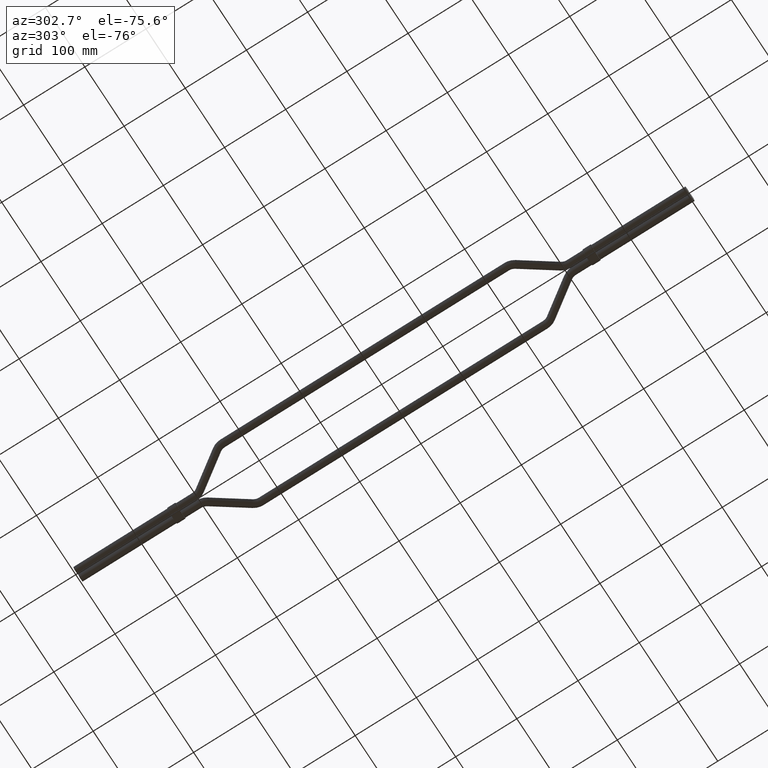
[diagram: clean part render]
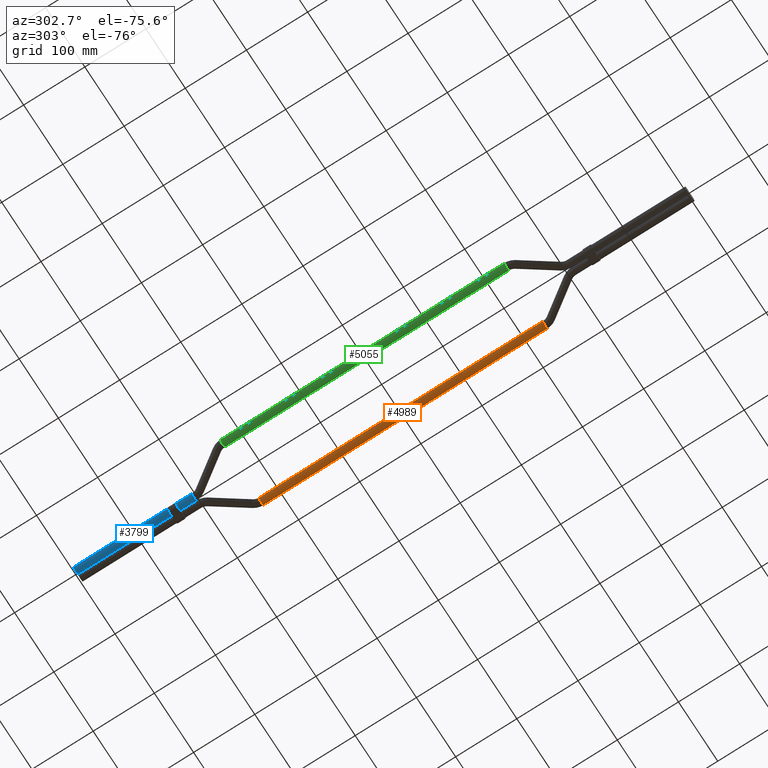
[diagram: same view with three faces highlighted in distinct colors, each labeled with its STEP entity id]
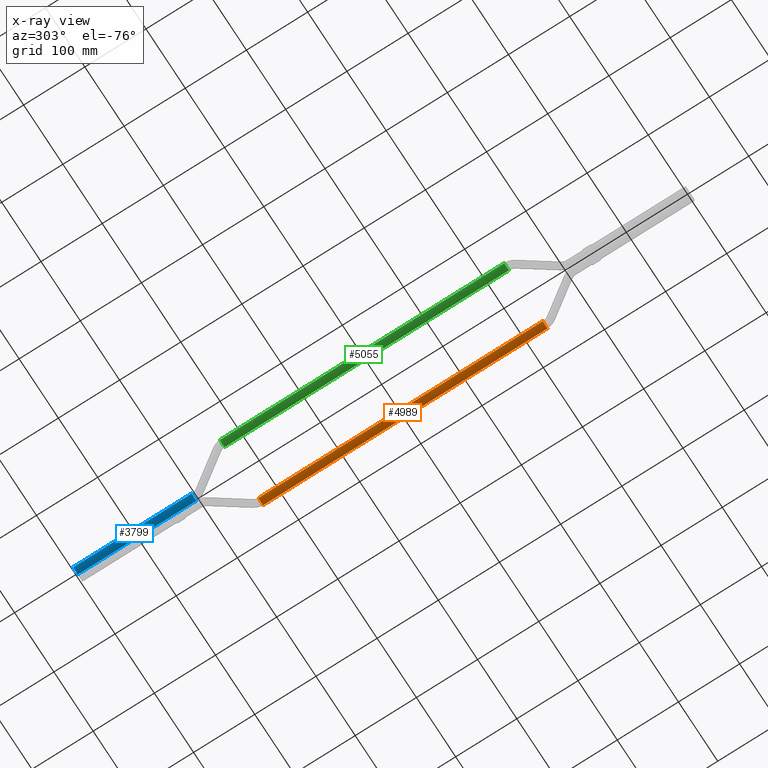
[diagram: x-ray of the same camera — body ghosted, the three highlighted faces saturated]
A machine part, auxiliary view with three faces highlighted in distinct colors.
The next image is the same camera in x-ray (body ghosted, the three faces saturated) — at least one of them is partly hidden behind the body in this view.
Their STEP definitions:

[orange] entity #4989 — the highlighted cylindrical surface (edge-blend (fillet) strip) has radius 6 mm, axis along (-0, 1, 0).
#60 = VERTEX_POINT ( 'NONE', #5486 ) ;
#234 = DIRECTION ( 'NONE',  ( -1.000000000000000000, 0.0000000000000000000, 0.0000000000000000000 ) ) ;
#272 = EDGE_CURVE ( 'NONE', #60, #1534, #6902, .T. ) ;
#735 = AXIS2_PLACEMENT_3D ( 'NONE', #757, #5087, #1363 ) ;
#757 = CARTESIAN_POINT ( 'NONE',  ( 55.00000000000007800, 267.7163400650701400, 0.0000000000000000000 ) ) ;
#805 = CIRCLE ( 'NONE', #735, 6.000000000000002700 ) ;
#965 = LINE ( 'NONE', #6100, #2438 ) ;
#1199 = DIRECTION ( 'NONE',  ( -1.493625058656953700E-017, 1.000000000000000000, 0.0000000000000000000 ) ) ;
#1308 = ORIENTED_EDGE ( 'NONE', *, *, #272, .T. ) ;
#1363 = DIRECTION ( 'NONE',  ( 0.0000000000000000000, 0.0000000000000000000, 1.000000000000000000 ) ) ;
#1534 = VERTEX_POINT ( 'NONE', #7263 ) ;
#1738 = CARTESIAN_POINT ( 'NONE',  ( 55.00000000000007100, 732.2836599349298000, 0.0000000000000000000 ) ) ;
#1996 = CIRCLE ( 'NONE', #3702, 6.000000000000002700 ) ;
#2363 = DIRECTION ( 'NONE',  ( 0.0000000000000000000, 0.0000000000000000000, 1.000000000000000000 ) ) ;
#2438 = VECTOR ( 'NONE', #1199, 1000.000000000000000 ) ;
#2459 = EDGE_CURVE ( 'NONE', #5306, #1534, #1996, .T. ) ;
#3272 = ORIENTED_EDGE ( 'NONE', *, *, #6672, .F. ) ;
#3618 = ORIENTED_EDGE ( 'NONE', *, *, #3756, .T. ) ;
#3702 = AXIS2_PLACEMENT_3D ( 'NONE', #1738, #6016, #2363 ) ;
#3741 = EDGE_LOOP ( 'NONE', ( #3272, #3618, #1308, #5341 ) ) ;
#3756 = EDGE_CURVE ( 'NONE', #6355, #60, #805, .T. ) ;
#3909 = CYLINDRICAL_SURFACE ( 'NONE', #7611, 6.000000000000005300 ) ;
#4112 = FACE_OUTER_BOUND ( 'NONE', #3741, .T. ) ;
#4575 = CARTESIAN_POINT ( 'NONE',  ( 55.00000000000007800, 267.7163400650701400, 0.0000000000000000000 ) ) ;
#4989 = ADVANCED_FACE ( 'NONE', ( #4112 ), #3909, .T. ) ;
#5087 = DIRECTION ( 'NONE',  ( -3.885780586188047900E-016, 1.000000000000000000, 0.0000000000000000000 ) ) ;
#5231 = DIRECTION ( 'NONE',  ( -1.493625058656953700E-017, 1.000000000000000000, 0.0000000000000000000 ) ) ;
#5306 = VERTEX_POINT ( 'NONE', #6461 ) ;
#5335 = CARTESIAN_POINT ( 'NONE',  ( 49.00000000000007100, 267.7163400650701400, 0.0000000000000000000 ) ) ;
#5341 = ORIENTED_EDGE ( 'NONE', *, *, #2459, .F. ) ;
#5441 = VECTOR ( 'NONE', #5231, 1000.000000000000000 ) ;
#5486 = CARTESIAN_POINT ( 'NONE',  ( 49.00000000000007100, 267.7163400650701400, 0.0000000000000000000 ) ) ;
#5781 = DIRECTION ( 'NONE',  ( -1.493625058656953700E-017, 1.000000000000000000, 0.0000000000000000000 ) ) ;
#5932 = CARTESIAN_POINT ( 'NONE',  ( 61.00000000000008500, 267.7163400650701400, 7.347880794884118800E-016 ) ) ;
#6016 = DIRECTION ( 'NONE',  ( -3.885780586188047900E-016, 1.000000000000000000, 0.0000000000000000000 ) ) ;
#6100 = CARTESIAN_POINT ( 'NONE',  ( 61.00000000000008500, 267.7163400650701400, 7.347880794884121700E-016 ) ) ;
#6355 = VERTEX_POINT ( 'NONE', #5932 ) ;
#6461 = CARTESIAN_POINT ( 'NONE',  ( 61.00000000000007800, 732.2836599349298000, 7.347880794884118800E-016 ) ) ;
#6672 = EDGE_CURVE ( 'NONE', #6355, #5306, #965, .T. ) ;
#6902 = LINE ( 'NONE', #5335, #5441 ) ;
#7263 = CARTESIAN_POINT ( 'NONE',  ( 49.00000000000006400, 732.2836599349298000, 0.0000000000000000000 ) ) ;
#7611 = AXIS2_PLACEMENT_3D ( 'NONE', #4575, #5781, #234 ) ;

[blue] entity #3799 — the highlighted cylindrical surface (edge-blend (fillet) strip) has radius 6 mm, axis along (-0, 1, 0).
#698 = ORIENTED_EDGE ( 'NONE', *, *, #4877, .T. ) ;
#727 = LINE ( 'NONE', #2368, #7100 ) ;
#1019 = EDGE_LOOP ( 'NONE', ( #1585, #2015, #698, #3369 ) ) ;
#1585 = ORIENTED_EDGE ( 'NONE', *, *, #3116, .F. ) ;
#1635 = DIRECTION ( 'NONE',  ( -2.997602166487923400E-015, 1.000000000000000000, 0.0000000000000000000 ) ) ;
#2015 = ORIENTED_EDGE ( 'NONE', *, *, #4644, .T. ) ;
#2368 = CARTESIAN_POINT ( 'NONE',  ( 6.000000000000111900, 806.3059757775798700, 7.347880794884120700E-016 ) ) ;
#2641 = DIRECTION ( 'NONE',  ( -3.582399576736165800E-017, 1.000000000000000000, 0.0000000000000000000 ) ) ;
#2864 = VECTOR ( 'NONE', #5051, 1000.000000000000000 ) ;
#2906 = CARTESIAN_POINT ( 'NONE',  ( 1.110223024625156500E-013, 806.3059757775798700, 0.0000000000000000000 ) ) ;
#3116 = EDGE_CURVE ( 'NONE', #3388, #4992, #727, .T. ) ;
#3229 = AXIS2_PLACEMENT_3D ( 'NONE', #7298, #2641, #3248 ) ;
#3248 = DIRECTION ( 'NONE',  ( -1.000000000000000000, 0.0000000000000000000, 0.0000000000000000000 ) ) ;
#3369 = ORIENTED_EDGE ( 'NONE', *, *, #6941, .F. ) ;
#3388 = VERTEX_POINT ( 'NONE', #5374 ) ;
#3515 = DIRECTION ( 'NONE',  ( 0.0000000000000000000, 0.0000000000000000000, 1.000000000000000000 ) ) ;
#3799 = ADVANCED_FACE ( 'NONE', ( #3912 ), #5352, .T. ) ;
#3856 = CARTESIAN_POINT ( 'NONE',  ( -5.999999999999889900, 806.3059757775798700, 0.0000000000000000000 ) ) ;
#3912 = FACE_OUTER_BOUND ( 'NONE', #1019, .T. ) ;
#4256 = CARTESIAN_POINT ( 'NONE',  ( -5.999999999999890800, 806.3059757775798700, 0.0000000000000000000 ) ) ;
#4644 = EDGE_CURVE ( 'NONE', #3388, #6492, #6909, .T. ) ;
#4829 = DIRECTION ( 'NONE',  ( -3.582399576736165800E-017, 1.000000000000000000, 0.0000000000000000000 ) ) ;
#4877 = EDGE_CURVE ( 'NONE', #6492, #5917, #6244, .T. ) ;
#4992 = VERTEX_POINT ( 'NONE', #5750 ) ;
#5051 = DIRECTION ( 'NONE',  ( -3.582399576736165800E-017, 1.000000000000000000, 0.0000000000000000000 ) ) ;
#5325 = CARTESIAN_POINT ( 'NONE',  ( 1.040834085586084300E-013, 1000.000000000000000, 0.0000000000000000000 ) ) ;
#5352 = CYLINDRICAL_SURFACE ( 'NONE', #3229, 6.000000000000000900 ) ;
#5374 = CARTESIAN_POINT ( 'NONE',  ( 6.000000000000111900, 806.3059757775798700, 7.347880794884124700E-016 ) ) ;
#5681 = CARTESIAN_POINT ( 'NONE',  ( -5.999999999999897000, 1000.000000000000000, 0.0000000000000000000 ) ) ;
#5750 = CARTESIAN_POINT ( 'NONE',  ( 6.000000000000105700, 1000.000000000000000, 7.347880794884122700E-016 ) ) ;
#5917 = VERTEX_POINT ( 'NONE', #5681 ) ;
#5920 = DIRECTION ( 'NONE',  ( 0.0000000000000000000, 0.0000000000000000000, 1.000000000000000000 ) ) ;
#5954 = CIRCLE ( 'NONE', #6963, 6.000000000000000900 ) ;
#6244 = LINE ( 'NONE', #3856, #2864 ) ;
#6492 = VERTEX_POINT ( 'NONE', #4256 ) ;
#6909 = CIRCLE ( 'NONE', #7010, 6.000000000000000900 ) ;
#6941 = EDGE_CURVE ( 'NONE', #4992, #5917, #5954, .T. ) ;
#6963 = AXIS2_PLACEMENT_3D ( 'NONE', #5325, #1635, #5920 ) ;
#7007 = DIRECTION ( 'NONE',  ( -2.997602166487923400E-015, 1.000000000000000000, 0.0000000000000000000 ) ) ;
#7010 = AXIS2_PLACEMENT_3D ( 'NONE', #2906, #7007, #3515 ) ;
#7100 = VECTOR ( 'NONE', #4829, 1000.000000000000000 ) ;
#7298 = CARTESIAN_POINT ( 'NONE',  ( 1.110223024625156500E-013, 806.3059757775798700, 0.0000000000000000000 ) ) ;

[green] entity #5055 — the highlighted cylindrical surface (edge-blend (fillet) strip) has radius 6 mm, axis along (-0, 1, 0).
#70 = ORIENTED_EDGE ( 'NONE', *, *, #2323, .F. ) ;
#140 = DIRECTION ( 'NONE',  ( 0.0000000000000000000, 0.0000000000000000000, 1.000000000000000000 ) ) ;
#152 = DIRECTION ( 'NONE',  ( -7.771561172376097800E-016, 1.000000000000000000, 0.0000000000000000000 ) ) ;
#157 = CARTESIAN_POINT ( 'NONE',  ( -42.99999999999990100, 267.7163400674862100, 0.0000000000000000000 ) ) ;
#173 = CARTESIAN_POINT ( 'NONE',  ( -42.99999999999998600, 732.2836599325137300, 0.0000000000000000000 ) ) ;
#770 = VECTOR ( 'NONE', #1220, 1000.000000000000000 ) ;
#1009 = AXIS2_PLACEMENT_3D ( 'NONE', #2273, #2260, #2237 ) ;
#1022 = CARTESIAN_POINT ( 'NONE',  ( -48.99999999999990100, 267.7163400674862100, 0.0000000000000000000 ) ) ;
#1040 = EDGE_CURVE ( 'NONE', #7381, #1831, #1161, .T. ) ;
#1161 = LINE ( 'NONE', #1245, #770 ) ;
#1220 = DIRECTION ( 'NONE',  ( -1.792350070406987500E-016, 1.000000000000000000, 0.0000000000000000000 ) ) ;
#1245 = CARTESIAN_POINT ( 'NONE',  ( -48.99999999999990100, 267.7163400674862100, 0.0000000000000000000 ) ) ;
#1380 = DIRECTION ( 'NONE',  ( -1.792350070406987200E-016, 1.000000000000000000, 0.0000000000000000000 ) ) ;
#1721 = ORIENTED_EDGE ( 'NONE', *, *, #1040, .T. ) ;
#1831 = VERTEX_POINT ( 'NONE', #4929 ) ;
#1969 = AXIS2_PLACEMENT_3D ( 'NONE', #157, #1380, #5105 ) ;
#2026 = EDGE_CURVE ( 'NONE', #6590, #7381, #5192, .T. ) ;
#2237 = DIRECTION ( 'NONE',  ( 0.0000000000000000000, 0.0000000000000000000, 1.000000000000000000 ) ) ;
#2260 = DIRECTION ( 'NONE',  ( -7.771561172376097800E-016, 1.000000000000000000, 0.0000000000000000000 ) ) ;
#2265 = ORIENTED_EDGE ( 'NONE', *, *, #2026, .T. ) ;
#2273 = CARTESIAN_POINT ( 'NONE',  ( -42.99999999999990100, 267.7163400674862100, 0.0000000000000000000 ) ) ;
#2323 = EDGE_CURVE ( 'NONE', #4179, #1831, #4243, .T. ) ;
#2495 = CARTESIAN_POINT ( 'NONE',  ( -36.99999999999990100, 267.7163400674862100, 7.347880794884174000E-016 ) ) ;
#2947 = LINE ( 'NONE', #5305, #5988 ) ;
#4137 = EDGE_LOOP ( 'NONE', ( #4636, #2265, #1721, #70 ) ) ;
#4179 = VERTEX_POINT ( 'NONE', #5831 ) ;
#4243 = CIRCLE ( 'NONE', #6960, 6.000000000000000900 ) ;
#4636 = ORIENTED_EDGE ( 'NONE', *, *, #5230, .F. ) ;
#4929 = CARTESIAN_POINT ( 'NONE',  ( -48.99999999999997900, 732.2836599325137300, 0.0000000000000000000 ) ) ;
#5055 = ADVANCED_FACE ( 'NONE', ( #6824 ), #5159, .T. ) ;
#5105 = DIRECTION ( 'NONE',  ( -1.000000000000000000, 0.0000000000000000000, 0.0000000000000000000 ) ) ;
#5159 = CYLINDRICAL_SURFACE ( 'NONE', #1969, 5.999999999999998200 ) ;
#5192 = CIRCLE ( 'NONE', #1009, 6.000000000000000900 ) ;
#5230 = EDGE_CURVE ( 'NONE', #6590, #4179, #2947, .T. ) ;
#5305 = CARTESIAN_POINT ( 'NONE',  ( -36.99999999999990100, 267.7163400674862100, 7.347880794884120700E-016 ) ) ;
#5831 = CARTESIAN_POINT ( 'NONE',  ( -36.99999999999998600, 732.2836599325137300, 7.347880794884123700E-016 ) ) ;
#5902 = DIRECTION ( 'NONE',  ( -1.792350070406987500E-016, 1.000000000000000000, 0.0000000000000000000 ) ) ;
#5988 = VECTOR ( 'NONE', #5902, 1000.000000000000000 ) ;
#6590 = VERTEX_POINT ( 'NONE', #2495 ) ;
#6824 = FACE_OUTER_BOUND ( 'NONE', #4137, .T. ) ;
#6960 = AXIS2_PLACEMENT_3D ( 'NONE', #173, #152, #140 ) ;
#7381 = VERTEX_POINT ( 'NONE', #1022 ) ;